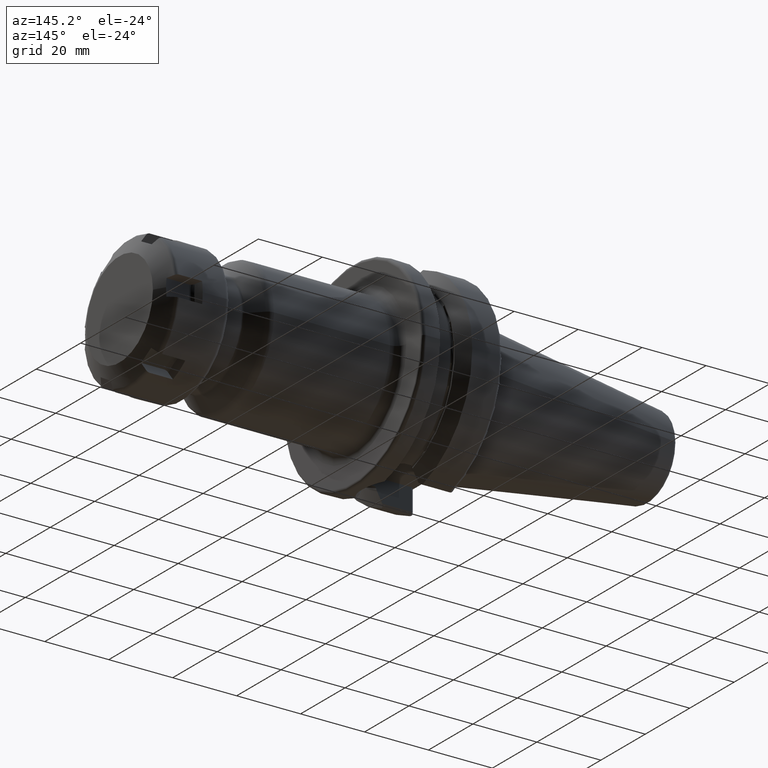
[diagram: clean part render]
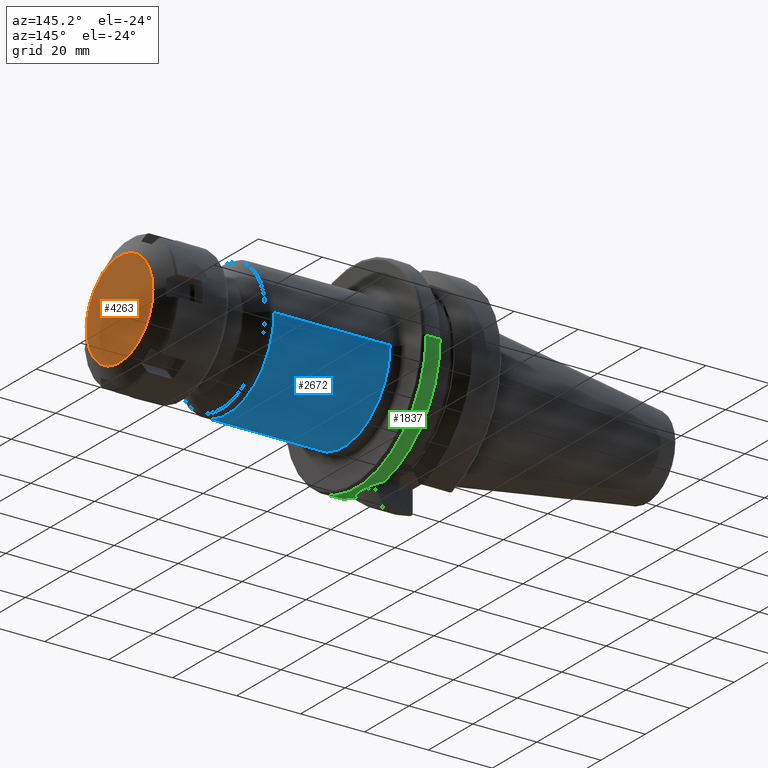
[diagram: same view with three faces highlighted in distinct colors, each labeled with its STEP entity id]
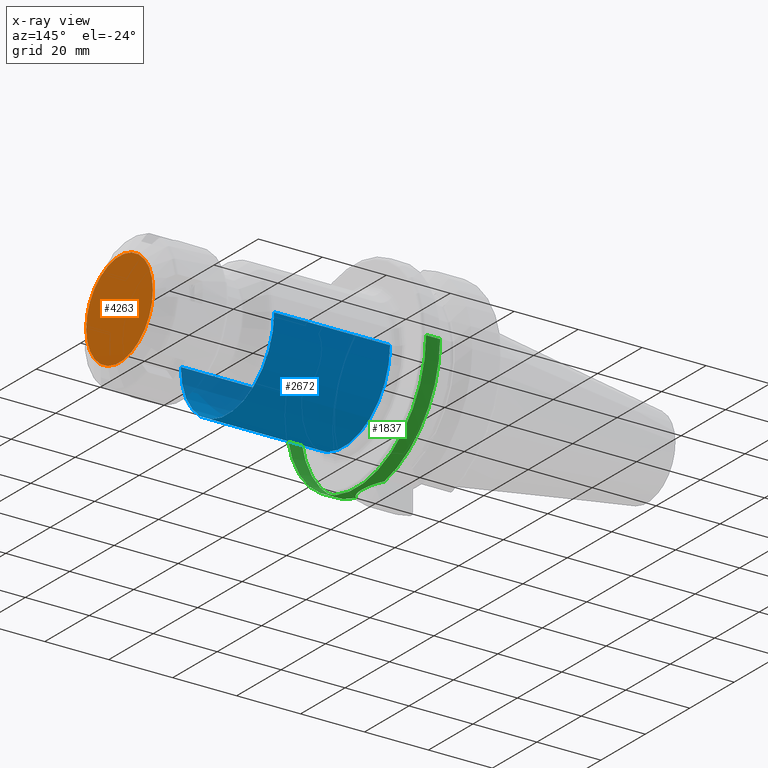
[diagram: x-ray of the same camera — body ghosted, the three highlighted faces saturated]
A machine part, auxiliary view with three faces highlighted in distinct colors.
The next image is the same camera in x-ray (body ghosted, the three faces saturated) — at least one of them is partly hidden behind the body in this view.
Their STEP definitions:

[orange] entity #4263 — the highlighted planar face has unit normal (1, 0, 0).
#3418=CARTESIAN_POINT('',(2.E1,-2.266909448450E-14,0.E0));
#3419=DIRECTION('',(-1.E0,0.E0,0.E0));
#3420=DIRECTION('',(0.E0,1.E0,0.E0));
#3421=AXIS2_PLACEMENT_3D('',#3418,#3419,#3420);
#3740=CARTESIAN_POINT('',(2.E1,-2.266909448450E-14,0.E0));
#3741=DIRECTION('',(1.E0,0.E0,0.E0));
#3742=DIRECTION('',(0.E0,1.E0,0.E0));
#3743=AXIS2_PLACEMENT_3D('',#3740,#3741,#3742);
#4150=CARTESIAN_POINT('',(2.E1,1.5E1,0.E0));
#4151=CARTESIAN_POINT('',(2.E1,-1.5E1,0.E0));
#4152=VERTEX_POINT('',#4150);
#4153=VERTEX_POINT('',#4151);
#4252=CARTESIAN_POINT('',(2.E1,-2.266909448450E-14,0.E0));
#4253=DIRECTION('',(1.E0,0.E0,0.E0));
#4254=DIRECTION('',(0.E0,-1.E0,0.E0));
#4255=AXIS2_PLACEMENT_3D('',#4252,#4253,#4254);
#4256=PLANE('',#4255);
#4258=ORIENTED_EDGE('',*,*,#4257,.T.);
#4260=ORIENTED_EDGE('',*,*,#4259,.F.);
#4261=EDGE_LOOP('',(#4258,#4260));
#4262=FACE_OUTER_BOUND('',#4261,.F.);
#4263=ADVANCED_FACE('',(#4262),#4256,.T.);
#3422=CIRCLE('',#3421,1.5E1);
#3744=CIRCLE('',#3743,1.5E1);
#4257=EDGE_CURVE('',#4152,#4153,#3422,.T.);
#4259=EDGE_CURVE('',#4152,#4153,#3744,.T.);

[blue] entity #2672 — the highlighted cylindrical surface (partial cylindrical patch) has radius 21 mm, axis along (1, 0, 0).
#876=CARTESIAN_POINT('',(6.625735931288E1,0.E0,0.E0));
#877=DIRECTION('',(-1.E0,0.E0,0.E0));
#878=DIRECTION('',(0.E0,1.E0,0.E0));
#879=AXIS2_PLACEMENT_3D('',#876,#877,#878);
#881=DIRECTION('',(-1.E0,0.E0,1.458693879415E-13));
#882=VECTOR('',#881,3.625735931288E1);
#883=CARTESIAN_POINT('',(6.625735931288E1,2.1E1,-3.840092724958E-12));
#884=LINE('',#883,#882);
#885=CARTESIAN_POINT('',(3.E1,0.E0,0.E0));
#886=DIRECTION('',(1.E0,0.E0,0.E0));
#887=DIRECTION('',(0.E0,-1.E0,0.E0));
#888=AXIS2_PLACEMENT_3D('',#885,#886,#887);
#890=DIRECTION('',(-1.E0,0.E0,-1.458662234535E-13));
#891=VECTOR('',#890,3.625735931288E1);
#892=CARTESIAN_POINT('',(6.625735931288E1,-2.1E1,3.839432193923E-12));
#893=LINE('',#892,#891);
#1469=CARTESIAN_POINT('',(3.E1,-2.1E1,0.E0));
#1470=CARTESIAN_POINT('',(3.E1,2.1E1,0.E0));
#1471=VERTEX_POINT('',#1469);
#1472=VERTEX_POINT('',#1470);
#1481=CARTESIAN_POINT('',(6.625735931288E1,2.1E1,0.E0));
#1482=CARTESIAN_POINT('',(6.625735931288E1,-2.1E1,0.E0));
#1483=VERTEX_POINT('',#1481);
#1484=VERTEX_POINT('',#1482);
#2661=CARTESIAN_POINT('',(2.395E1,0.E0,0.E0));
#2662=DIRECTION('',(1.E0,0.E0,0.E0));
#2663=DIRECTION('',(0.E0,-1.E0,0.E0));
#2664=AXIS2_PLACEMENT_3D('',#2661,#2662,#2663);
#2665=CYLINDRICAL_SURFACE('',#2664,2.1E1);
#2666=ORIENTED_EDGE('',*,*,#2652,.F.);
#2667=ORIENTED_EDGE('',*,*,#2627,.T.);
#2668=ORIENTED_EDGE('',*,*,#2597,.F.);
#2669=ORIENTED_EDGE('',*,*,#2624,.F.);
#2670=EDGE_LOOP('',(#2666,#2667,#2668,#2669));
#2671=FACE_OUTER_BOUND('',#2670,.F.);
#2672=ADVANCED_FACE('',(#2671),#2665,.T.);
#880=CIRCLE('',#879,2.1E1);
#889=CIRCLE('',#888,2.1E1);
#2597=EDGE_CURVE('',#1471,#1472,#889,.T.);
#2624=EDGE_CURVE('',#1484,#1471,#893,.T.);
#2627=EDGE_CURVE('',#1483,#1472,#884,.T.);
#2652=EDGE_CURVE('',#1483,#1484,#880,.T.);

[green] entity #1837 — the highlighted cylindrical surface (partial cylindrical patch) has radius 31.4875 mm, axis along (1, 0, 0).
#246=CARTESIAN_POINT('',(2.162727746897E1,0.E0,0.E0));
#247=DIRECTION('',(1.E0,0.E0,0.E0));
#248=DIRECTION('',(0.E0,-1.E0,0.E0));
#249=AXIS2_PLACEMENT_3D('',#246,#247,#248);
#251=DIRECTION('',(-1.E0,0.E0,0.E0));
#252=VECTOR('',#251,4.372722531031E0);
#253=CARTESIAN_POINT('',(2.6E1,-3.14875E1,0.E0));
#254=LINE('',#253,#252);
#255=CARTESIAN_POINT('',(2.6E1,0.E0,0.E0));
#256=DIRECTION('',(-1.E0,0.E0,0.E0));
#257=DIRECTION('',(0.E0,1.E0,0.E0));
#258=AXIS2_PLACEMENT_3D('',#255,#256,#257);
#260=DIRECTION('',(-1.E0,0.E0,0.E0));
#261=VECTOR('',#260,4.372722531031E0);
#262=CARTESIAN_POINT('',(2.6E1,3.14875E1,0.E0));
#263=LINE('',#262,#261);
#264=CARTESIAN_POINT('',(2.162727746897E1,0.E0,0.E0));
#265=DIRECTION('',(1.E0,0.E0,0.E0));
#266=DIRECTION('',(0.E0,2.025221356988E-1,-9.792776851088E-1));
#267=AXIS2_PLACEMENT_3D('',#264,#265,#266);
#269=CARTESIAN_POINT('',(2.162727746897E1,-6.376922817779E0,-3.083500464774E1));
#270=CARTESIAN_POINT('',(2.179639421098E1,-6.206831610819E0,-3.087018371088E1));
#271=CARTESIAN_POINT('',(2.232364867117E1,-5.632321227298E0,-3.098422972396E1));
#272=CARTESIAN_POINT('',(2.308132499159E1,-4.553413356838E0,-3.116719517710E1));
#273=CARTESIAN_POINT('',(2.375642364916E1,-3.096696697708E0,-3.134706212903E1));
#274=CARTESIAN_POINT('',(2.416388565718E1,-1.551520318298E0,-3.146240625515E1));
#275=CARTESIAN_POINT('',(2.429615986887E1,3.673173569156E-2,-3.150094402831E1));
#276=CARTESIAN_POINT('',(2.415103100304E1,1.624802494737E0,-3.145868929477E1));
#277=CARTESIAN_POINT('',(2.373074835246E1,3.167093598881E0,-3.133996423654E1));
#278=CARTESIAN_POINT('',(2.304347310477E1,4.618481554386E0,-3.115752883213E1));
#279=CARTESIAN_POINT('',(2.229119413287E1,5.670903386055E0,-3.097688944820E1));
#280=CARTESIAN_POINT('',(2.177863162319E1,6.224695230405E0,-3.086648974378E1));
#281=CARTESIAN_POINT('',(2.162727746897E1,6.376915747817E0,-3.083500610986E1));
#1282=CARTESIAN_POINT('',(2.162727746897E1,3.14875E1,0.E0));
#1284=VERTEX_POINT('',#1282);
#1286=CARTESIAN_POINT('',(2.162727746897E1,-3.14875E1,0.E0));
#1287=CARTESIAN_POINT('',(2.162727746897E1,-6.376922817779E0,
-3.083500464774E1));
#1288=VERTEX_POINT('',#1286);
#1289=VERTEX_POINT('',#1287);
#1290=CARTESIAN_POINT('',(2.6E1,3.14875E1,0.E0));
#1291=VERTEX_POINT('',#1290);
#1292=CARTESIAN_POINT('',(2.6E1,-3.14875E1,0.E0));
#1293=VERTEX_POINT('',#1292);
#1296=CARTESIAN_POINT('',(2.162727746897E1,6.376915747817E0,-3.083500610986E1));
#1297=VERTEX_POINT('',#1296);
#1818=CARTESIAN_POINT('',(-7.002E1,0.E0,0.E0));
#1819=DIRECTION('',(1.E0,0.E0,0.E0));
#1820=DIRECTION('',(0.E0,-1.E0,0.E0));
#1821=AXIS2_PLACEMENT_3D('',#1818,#1819,#1820);
#1822=CYLINDRICAL_SURFACE('',#1821,3.14875E1);
#1824=ORIENTED_EDGE('',*,*,#1823,.F.);
#1826=ORIENTED_EDGE('',*,*,#1825,.F.);
#1828=ORIENTED_EDGE('',*,*,#1827,.F.);
#1830=ORIENTED_EDGE('',*,*,#1829,.T.);
#1832=ORIENTED_EDGE('',*,*,#1831,.F.);
#1834=ORIENTED_EDGE('',*,*,#1833,.F.);
#1835=EDGE_LOOP('',(#1824,#1826,#1828,#1830,#1832,#1834));
#1836=FACE_OUTER_BOUND('',#1835,.F.);
#1837=ADVANCED_FACE('',(#1836),#1822,.T.);
#250=CIRCLE('',#249,3.14875E1);
#259=CIRCLE('',#258,3.14875E1);
#268=CIRCLE('',#267,3.14875E1);
#282=B_SPLINE_CURVE_WITH_KNOTS('',3,(#269,#270,#271,#272,#273,#274,#275,#276,
#277,#278,#279,#280,#281),.UNSPECIFIED.,.F.,.F.,(4,1,1,1,1,1,1,1,1,1,4),(0.E0,
5.022508536415E-2,1.633285299657E-1,2.764319745673E-1,3.895354191688E-1,
5.026388637704E-1,6.157423083720E-1,7.288457529735E-1,8.419491975751E-1,
9.550526421767E-1,1.E0),.UNSPECIFIED.);
#1823=EDGE_CURVE('',#1288,#1289,#250,.T.);
#1825=EDGE_CURVE('',#1293,#1288,#254,.T.);
#1827=EDGE_CURVE('',#1291,#1293,#259,.T.);
#1829=EDGE_CURVE('',#1291,#1284,#263,.T.);
#1831=EDGE_CURVE('',#1297,#1284,#268,.T.);
#1833=EDGE_CURVE('',#1289,#1297,#282,.T.);